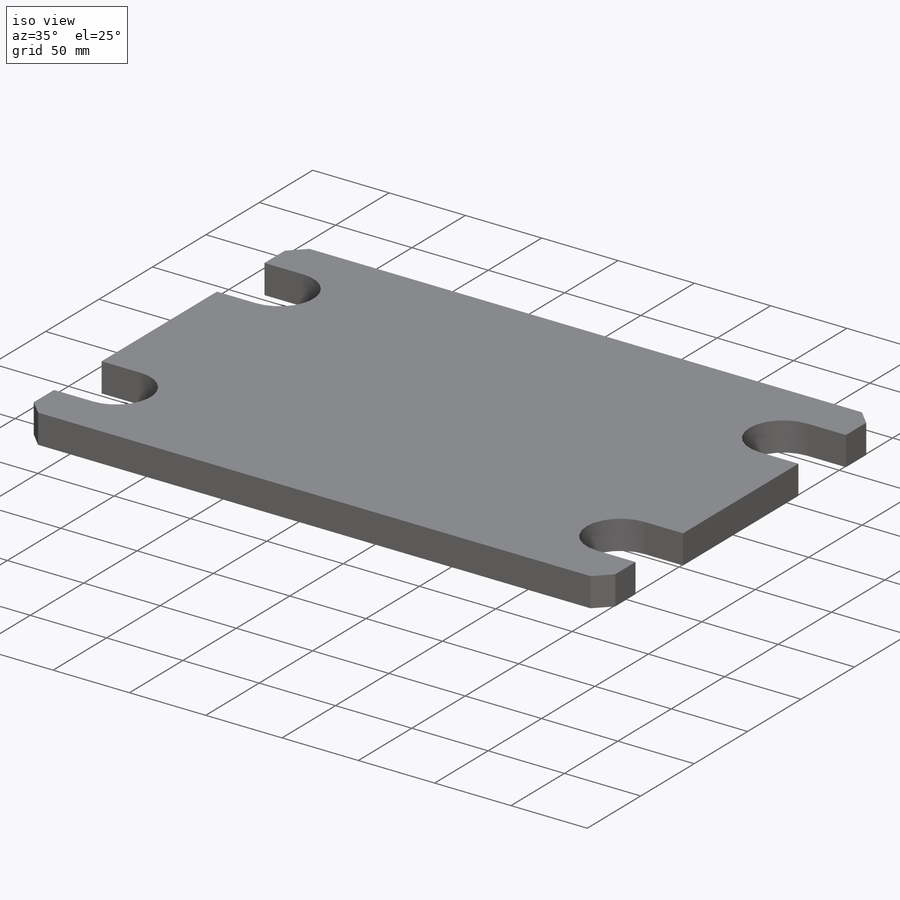
[diagram: iso view]
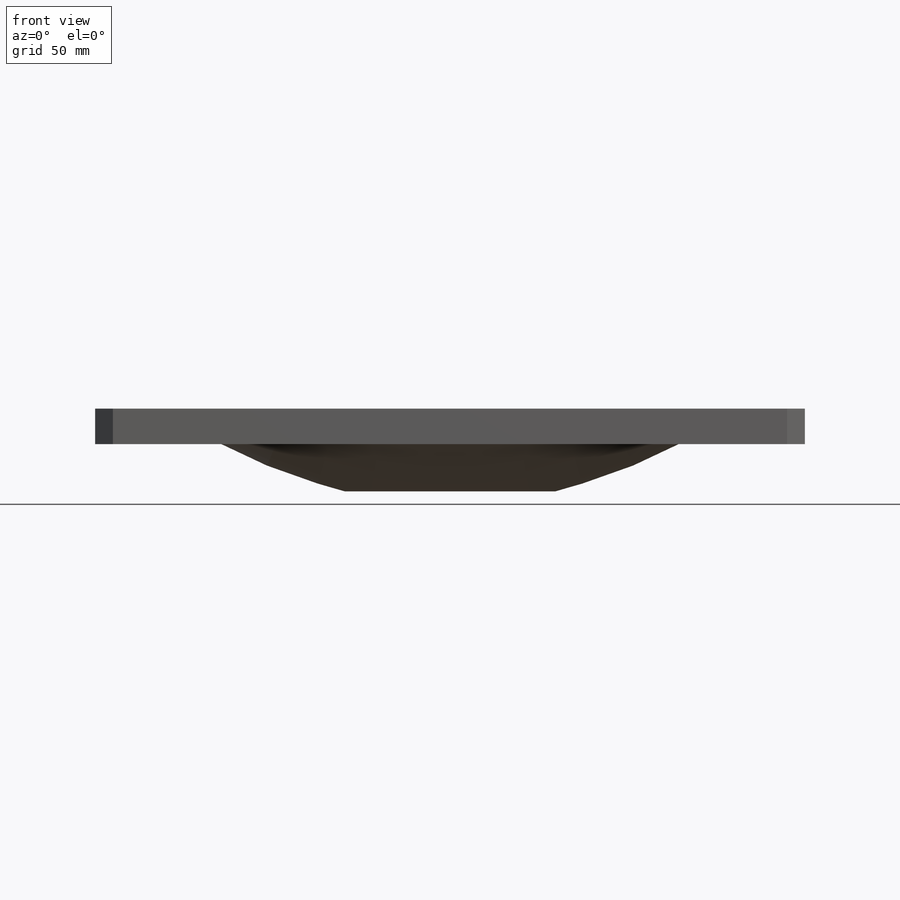
[diagram: front view]
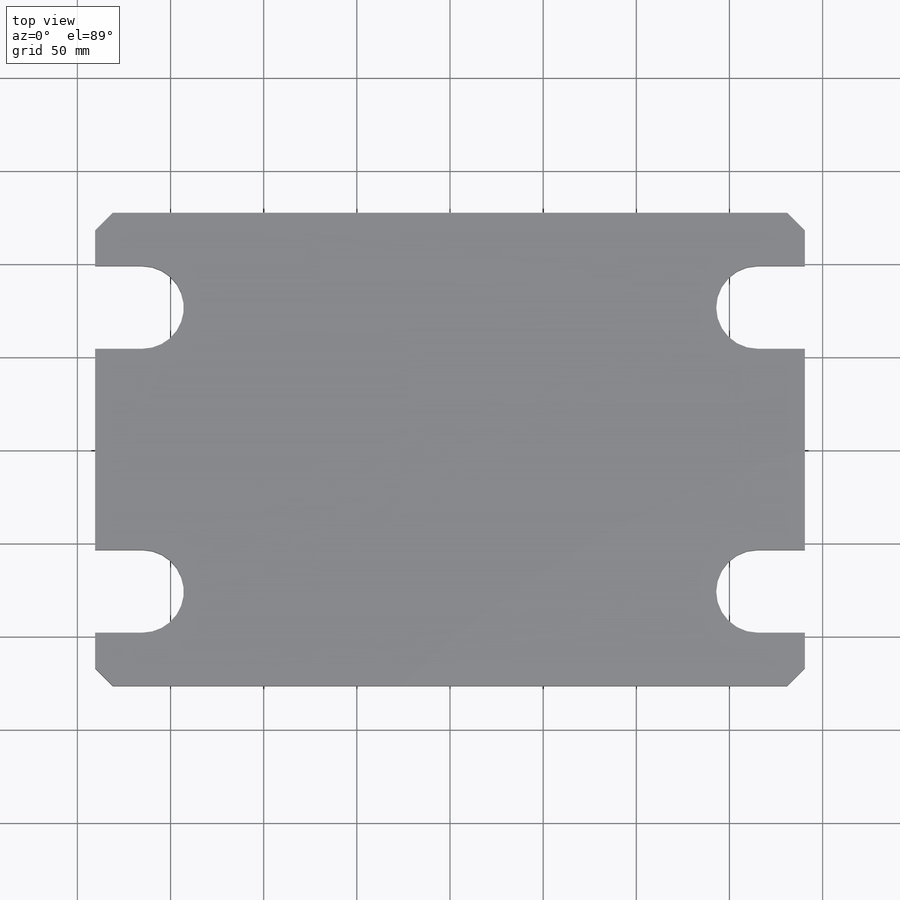
[diagram: top view]
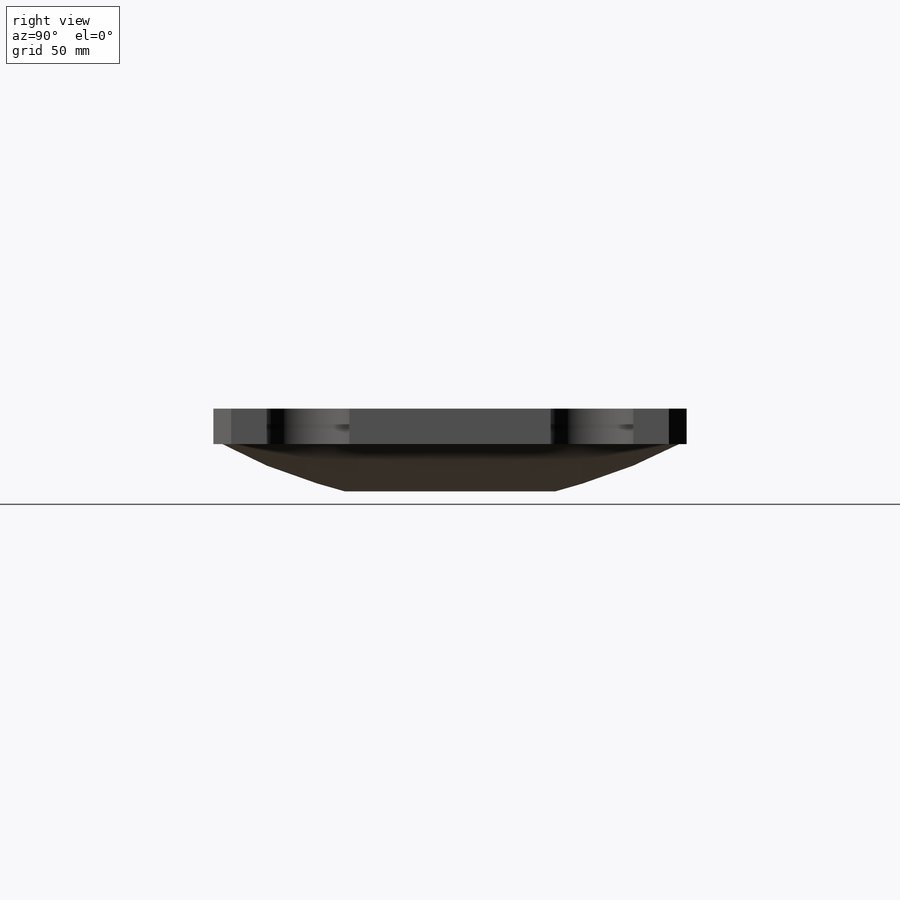
[diagram: right view]
SOLIDWORKS PART (.sldprt)
format: sldprt  version: not decoded by parser v0  size: 302,592 bytes
history: native  units: mm
features: sketch x5, plane x4, cut_extrude x2, material x1, extrude x1, revolve x1, chamfer x1 (+12 scaffold rows collapsed)
feature tree (27):
  scaffold x12  (default folders/planes/origin — collapsed)
  material  "Plain Carbon Steel"
  plane  "Plane1"
  plane  "Plane2"
  plane  "Plane3"
  sketch  "Sketch1"  dims[D1=254.0mm D2=381.0mm]
  extrude  "Base-Extrude"  Depth=19.05mm
  sketch  "Sketch2"  dims[D2=254.0mm D1=31.75mm]
  revolve  "Boss-Revolve1"  Angle=360deg
  sketch  "Sketch4"  dims[D5=22.225mm D6=22.225mm D7=22.225mm D8=22.225mm D1=50.8mm D2=50.8mm D3=25.4mm D4=25.4mm]
  cut_extrude  "Cut-Extrude1"  [1 undecoded]
  sketch  "Sketch5"  dims[D1=44.45mm]
  cut_extrude  "Cut-Extrude2"  [1 undecoded]
  chamfer  "Chamfer1"  Distance=9.525mm Angle=45deg
  sketch  "Sketch6"
  plane  "Plane4"
decode coverage: 7 of 10 modeling features carry decoded parameters
note: 2 parameter values undecoded
note: suppression state not decoded; provenance and decode notes live in map.json
